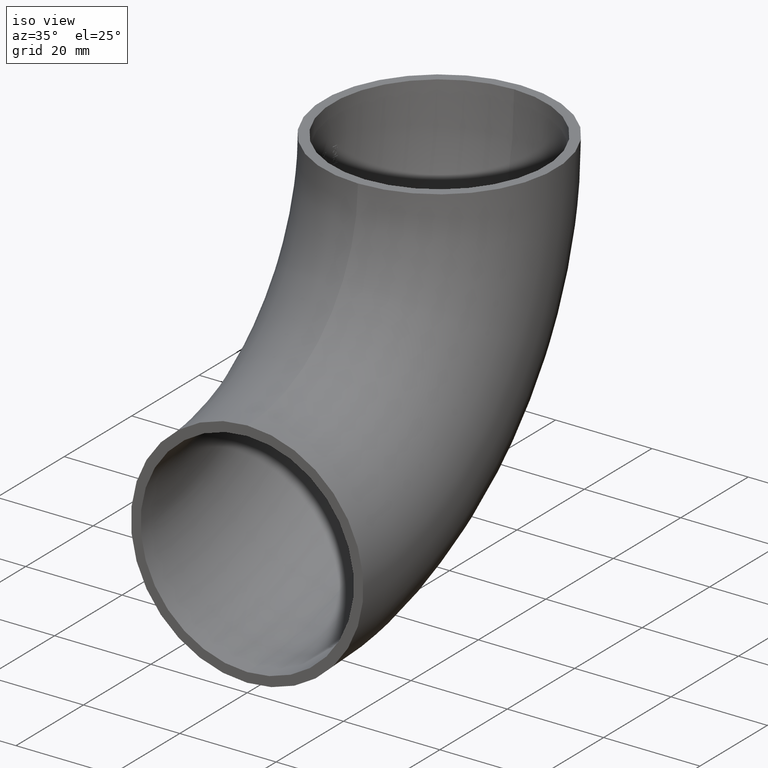
[diagram: clean part render]
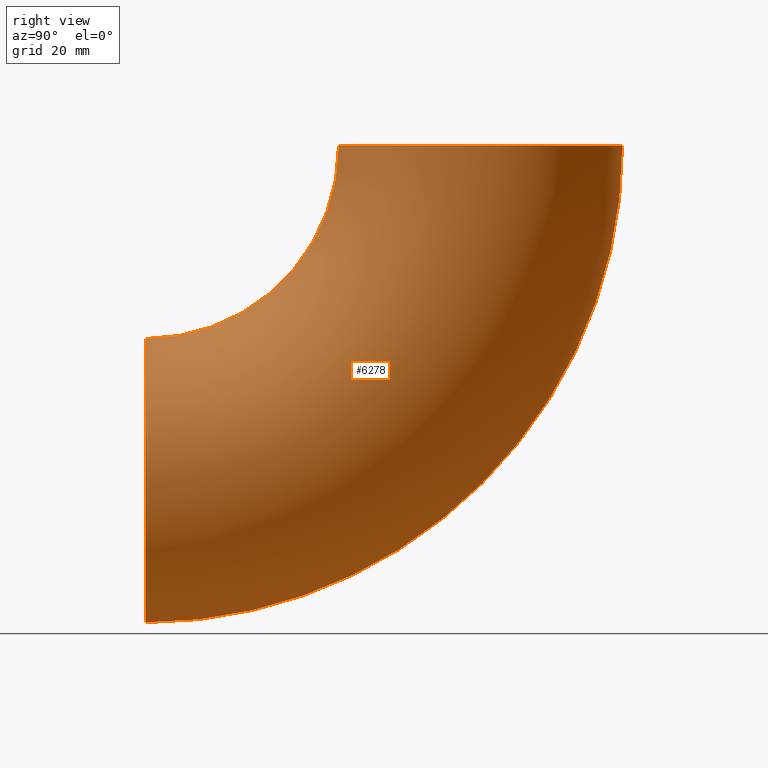
[diagram: tour spotlight — one face highlighted and labeled with its STEP entity id]
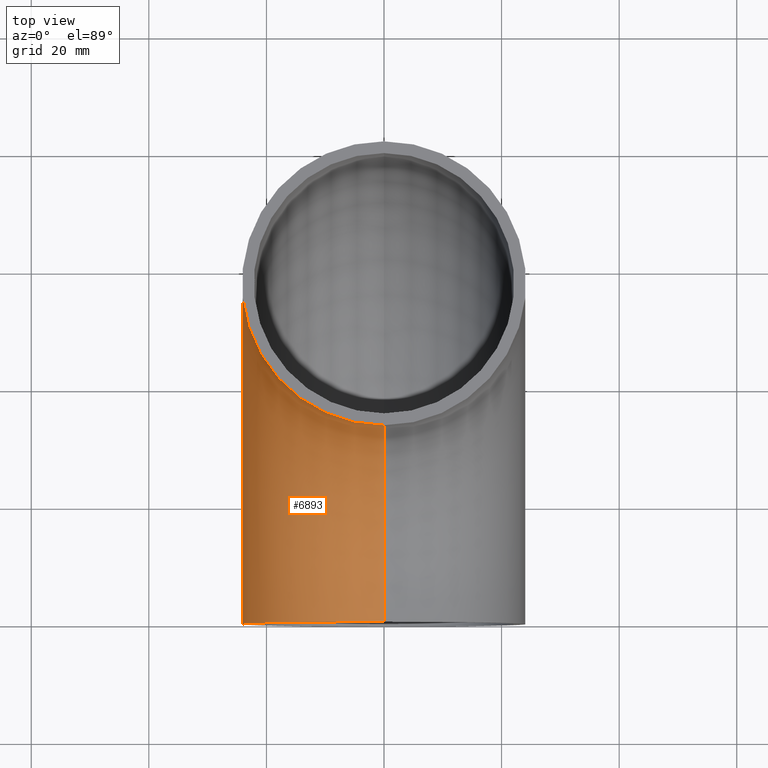
[diagram: tour spotlight — one face highlighted and labeled with its STEP entity id]
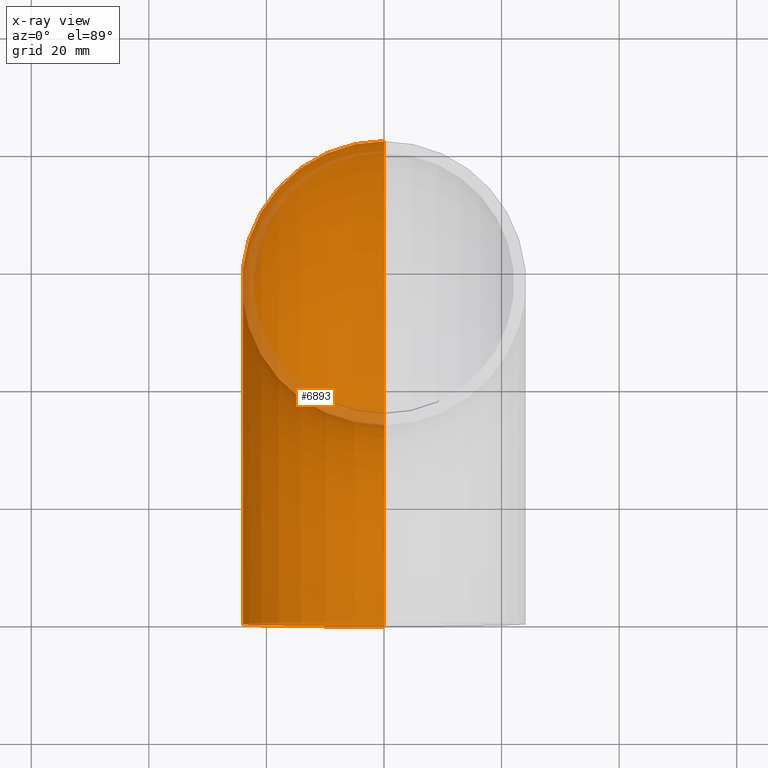
[diagram: x-ray of the same camera — body ghosted, this tour face saturated]
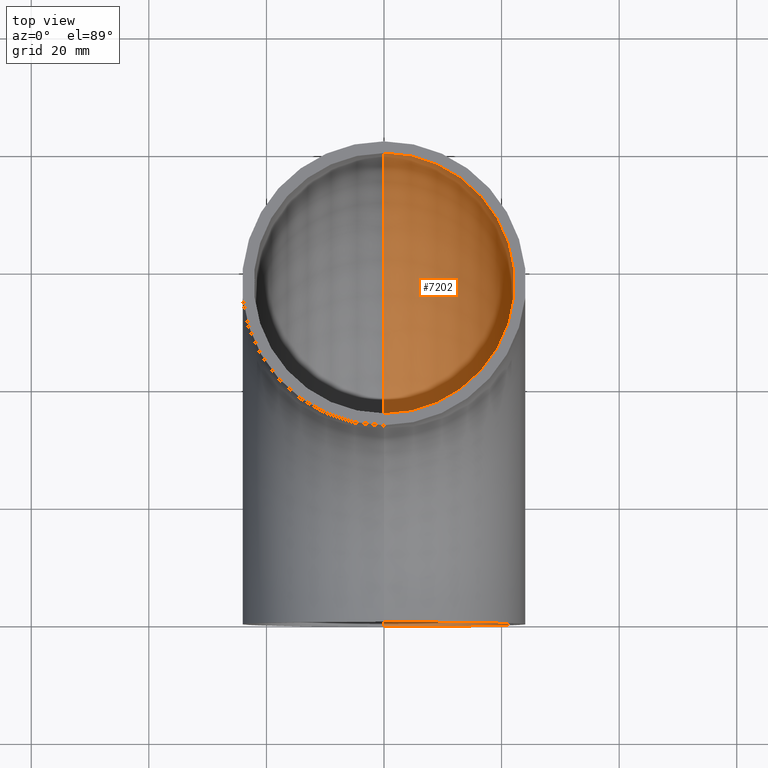
[diagram: tour spotlight — one face highlighted and labeled with its STEP entity id]
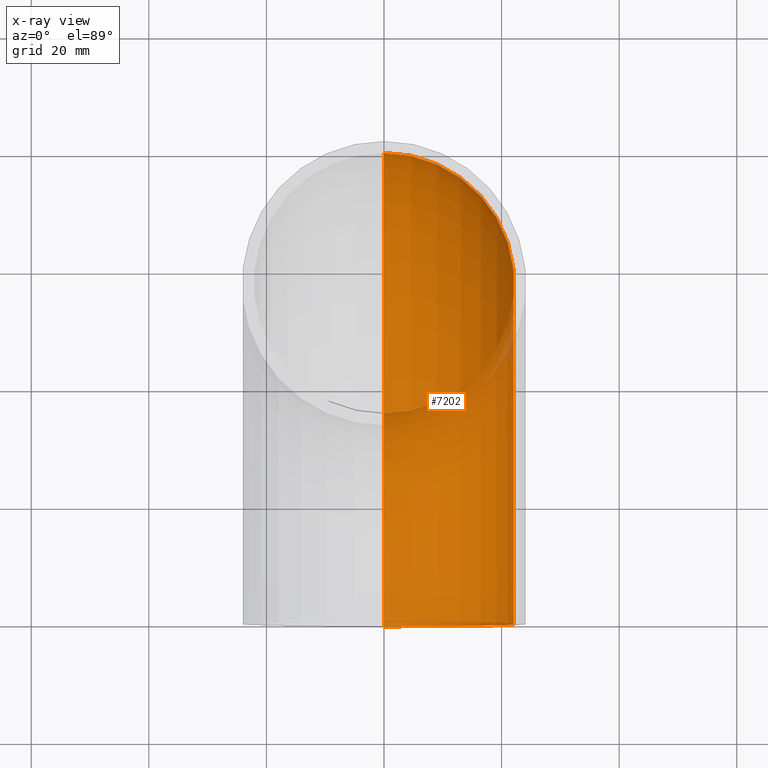
[diagram: x-ray of the same camera — body ghosted, this tour face saturated]
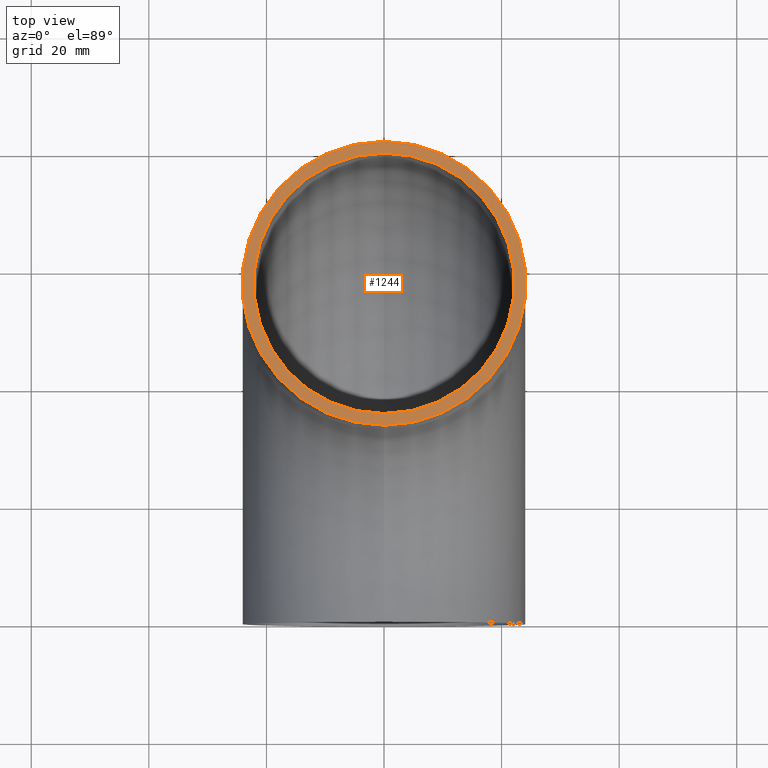
[diagram: tour spotlight — one face highlighted and labeled with its STEP entity id]
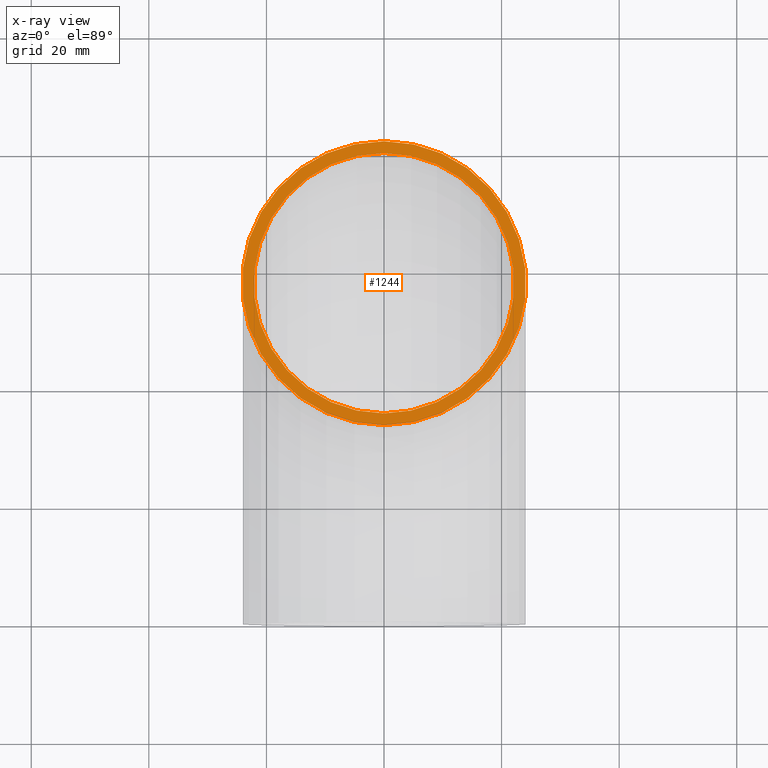
[diagram: x-ray of the same camera — body ghosted, this tour face saturated]
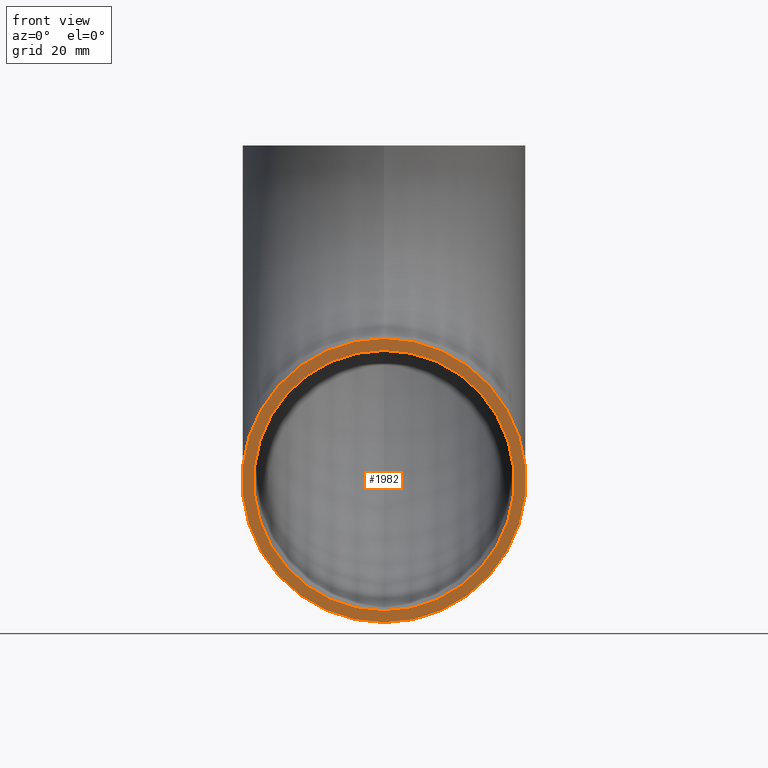
[diagram: tour spotlight — one face highlighted and labeled with its STEP entity id]
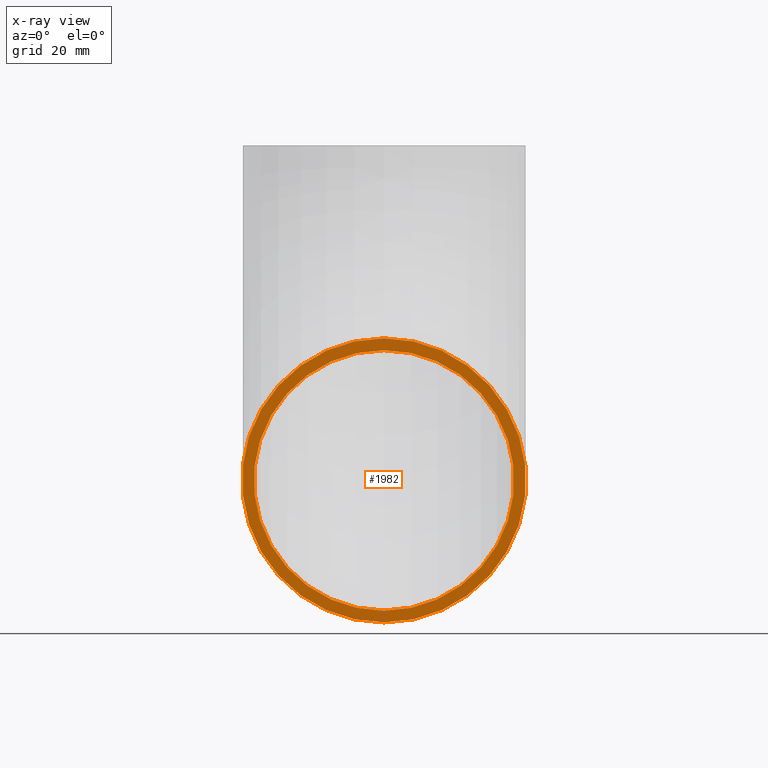
[diagram: x-ray of the same camera — body ghosted, this tour face saturated]
A machine part: a face-by-face anatomy tour. The part has 227 B-rep faces; the first image is the clean iso view, then the 5 largest visible faces are spotlighted one at a time (largest first), each with its STEP entity span.

Face 1 — right view, entity #6278. In plain terms, the highlighted toroidal blend (fillet) surface has major radius 57 mm and minor (blend) radius 24.15 mm.
Definition (entity closure, byte-faithful):
#220 = DIRECTION ( 'NONE',  ( 0.0000000000000000000, 0.0000000000000000000, 1.000000000000000000 ) ) ;
#323 = AXIS2_PLACEMENT_3D ( 'NONE', #2578, #3464, #6185 ) ;
#425 = CIRCLE ( 'NONE', #3983, 24.14999999999999900 ) ;
#527 = DIRECTION ( 'NONE',  ( -1.000000000000000000, -0.0000000000000000000, -0.0000000000000000000 ) ) ;
#1066 = DIRECTION ( 'NONE',  ( 0.0000000000000000000, 1.000000000000000000, 0.0000000000000000000 ) ) ;
#1524 = VERTEX_POINT ( 'NONE', #10981 ) ;
#1783 = DIRECTION ( 'NONE',  ( 0.0000000000000000000, -1.000000000000000000, 6.123233995736767300E-017 ) ) ;
#2466 = DIRECTION ( 'NONE',  ( 0.0000000000000000000, 0.0000000000000000000, 1.000000000000000000 ) ) ;
#2578 = CARTESIAN_POINT ( 'NONE',  ( 0.0000000000000000000, 0.0000000000000000000, 0.0000000000000000000 ) ) ;
#2625 = CIRCLE ( 'NONE', #11242, 32.85000000000000100 ) ;
#3050 = CARTESIAN_POINT ( 'NONE',  ( 0.0000000000000000000, 32.85000000000000100, -2.011482367599527500E-015 ) ) ;
#3082 = VERTEX_POINT ( 'NONE', #5708 ) ;
#3159 = CIRCLE ( 'NONE', #323, 81.15000000000000600 ) ;
#3168 = ORIENTED_EDGE ( 'NONE', *, *, #6587, .T. ) ;
#3193 = EDGE_CURVE ( 'NONE', #8144, #3082, #2625, .T. ) ;
#3194 = DIRECTION ( 'NONE',  ( 0.0000000000000000000, 6.123233995736766000E-017, 1.000000000000000000 ) ) ;
#3274 = CARTESIAN_POINT ( 'NONE',  ( 2.957522019940857900E-015, 0.0000000000000000000, 0.0000000000000000000 ) ) ;
#3464 = DIRECTION ( 'NONE',  ( -1.000000000000000000, -0.0000000000000000000, -0.0000000000000000000 ) ) ;
#3632 = EDGE_CURVE ( 'NONE', #8144, #6253, #8101, .T. ) ;
#3983 = AXIS2_PLACEMENT_3D ( 'NONE', #4573, #1066, #220 ) ;
#4389 = FACE_OUTER_BOUND ( 'NONE', #9222, .T. ) ;
#4573 = CARTESIAN_POINT ( 'NONE',  ( 0.0000000000000000000, 0.0000000000000000000, -57.00000000000000000 ) ) ;
#4876 = CARTESIAN_POINT ( 'NONE',  ( 0.0000000000000000000, 0.0000000000000000000, 0.0000000000000000000 ) ) ;
#5708 = CARTESIAN_POINT ( 'NONE',  ( 0.0000000000000000000, 0.0000000000000000000, -32.85000000000000100 ) ) ;
#5748 = ORIENTED_EDGE ( 'NONE', *, *, #5929, .F. ) ;
#5768 = CARTESIAN_POINT ( 'NONE',  ( 0.0000000000000000000, 81.15000000000000600, -4.969004387540385400E-015 ) ) ;
#5929 = EDGE_CURVE ( 'NONE', #6253, #1524, #3159, .T. ) ;
#6185 = DIRECTION ( 'NONE',  ( 0.0000000000000000000, 0.0000000000000000000, 1.000000000000000000 ) ) ;
#6253 = VERTEX_POINT ( 'NONE', #5768 ) ;
#6278 = ADVANCED_FACE ( 'NONE', ( #4389 ), #7946, .T. ) ;
#6587 = EDGE_CURVE ( 'NONE', #3082, #1524, #425, .T. ) ;
#6637 = DIRECTION ( 'NONE',  ( 0.0000000000000000000, 0.0000000000000000000, 1.000000000000000000 ) ) ;
#6785 = CARTESIAN_POINT ( 'NONE',  ( 0.0000000000000000000, 57.00000000000000000, -3.490243377569956500E-015 ) ) ;
#6816 = ORIENTED_EDGE ( 'NONE', *, *, #3193, .T. ) ;
#6913 = AXIS2_PLACEMENT_3D ( 'NONE', #4876, #527, #6637 ) ;
#7946 = TOROIDAL_SURFACE ( 'NONE', #6913, 57.00000000000000000, 24.14999999999999900 ) ;
#8044 = ORIENTED_EDGE ( 'NONE', *, *, #3632, .F. ) ;
#8101 = CIRCLE ( 'NONE', #8690, 24.14999999999999900 ) ;
#8144 = VERTEX_POINT ( 'NONE', #3050 ) ;
#8690 = AXIS2_PLACEMENT_3D ( 'NONE', #6785, #3194, #1783 ) ;
#9222 = EDGE_LOOP ( 'NONE', ( #5748, #8044, #6816, #3168 ) ) ;
#9424 = DIRECTION ( 'NONE',  ( -1.000000000000000000, -0.0000000000000000000, -0.0000000000000000000 ) ) ;
#10981 = CARTESIAN_POINT ( 'NONE',  ( 0.0000000000000000000, 0.0000000000000000000, -81.15000000000000600 ) ) ;
#11242 = AXIS2_PLACEMENT_3D ( 'NONE', #3274, #9424, #2466 ) ;

Face 2 — top view, entity #6893. An x-ray twin of the same camera follows (body ghosted, this face saturated) — the face is partly hidden behind the body. In plain terms, the highlighted toroidal blend (fillet) surface has major radius 57 mm and minor (blend) radius 24.15 mm.
Definition (entity closure, byte-faithful):
#323 = AXIS2_PLACEMENT_3D ( 'NONE', #2578, #3464, #6185 ) ;
#681 = ORIENTED_EDGE ( 'NONE', *, *, #3193, .F. ) ;
#1204 = ORIENTED_EDGE ( 'NONE', *, *, #10897, .F. ) ;
#1524 = VERTEX_POINT ( 'NONE', #10981 ) ;
#1653 = TOROIDAL_SURFACE ( 'NONE', #9504, 57.00000000000000000, 24.14999999999999900 ) ;
#2291 = DIRECTION ( 'NONE',  ( 0.0000000000000000000, 1.000000000000000000, 0.0000000000000000000 ) ) ;
#2466 = DIRECTION ( 'NONE',  ( 0.0000000000000000000, 0.0000000000000000000, 1.000000000000000000 ) ) ;
#2520 = DIRECTION ( 'NONE',  ( 0.0000000000000000000, -1.000000000000000000, 6.123233995736767300E-017 ) ) ;
#2578 = CARTESIAN_POINT ( 'NONE',  ( 0.0000000000000000000, 0.0000000000000000000, 0.0000000000000000000 ) ) ;
#2625 = CIRCLE ( 'NONE', #11242, 32.85000000000000100 ) ;
#2677 = DIRECTION ( 'NONE',  ( -1.000000000000000000, -0.0000000000000000000, -0.0000000000000000000 ) ) ;
#3050 = CARTESIAN_POINT ( 'NONE',  ( 0.0000000000000000000, 32.85000000000000100, -2.011482367599527500E-015 ) ) ;
#3082 = VERTEX_POINT ( 'NONE', #5708 ) ;
#3159 = CIRCLE ( 'NONE', #323, 81.15000000000000600 ) ;
#3177 = DIRECTION ( 'NONE',  ( 0.0000000000000000000, 0.0000000000000000000, 1.000000000000000000 ) ) ;
#3193 = EDGE_CURVE ( 'NONE', #8144, #3082, #2625, .T. ) ;
#3274 = CARTESIAN_POINT ( 'NONE',  ( 2.957522019940857900E-015, 0.0000000000000000000, 0.0000000000000000000 ) ) ;
#3464 = DIRECTION ( 'NONE',  ( -1.000000000000000000, -0.0000000000000000000, -0.0000000000000000000 ) ) ;
#4491 = EDGE_LOOP ( 'NONE', ( #1204, #9819, #8996, #681 ) ) ;
#4752 = CIRCLE ( 'NONE', #4875, 24.14999999999999900 ) ;
#4875 = AXIS2_PLACEMENT_3D ( 'NONE', #6927, #7846, #2520 ) ;
#4893 = CARTESIAN_POINT ( 'NONE',  ( 0.0000000000000000000, 0.0000000000000000000, -57.00000000000000000 ) ) ;
#5708 = CARTESIAN_POINT ( 'NONE',  ( 0.0000000000000000000, 0.0000000000000000000, -32.85000000000000100 ) ) ;
#5768 = CARTESIAN_POINT ( 'NONE',  ( 0.0000000000000000000, 81.15000000000000600, -4.969004387540385400E-015 ) ) ;
#5929 = EDGE_CURVE ( 'NONE', #6253, #1524, #3159, .T. ) ;
#6086 = DIRECTION ( 'NONE',  ( 0.0000000000000000000, 0.0000000000000000000, 1.000000000000000000 ) ) ;
#6185 = DIRECTION ( 'NONE',  ( 0.0000000000000000000, 0.0000000000000000000, 1.000000000000000000 ) ) ;
#6253 = VERTEX_POINT ( 'NONE', #5768 ) ;
#6569 = CIRCLE ( 'NONE', #9728, 24.14999999999999900 ) ;
#6893 = ADVANCED_FACE ( 'NONE', ( #8378 ), #1653, .T. ) ;
#6927 = CARTESIAN_POINT ( 'NONE',  ( 0.0000000000000000000, 57.00000000000000000, -3.490243377569956500E-015 ) ) ;
#6967 = CARTESIAN_POINT ( 'NONE',  ( 0.0000000000000000000, 0.0000000000000000000, 0.0000000000000000000 ) ) ;
#7846 = DIRECTION ( 'NONE',  ( 0.0000000000000000000, 6.123233995736766000E-017, 1.000000000000000000 ) ) ;
#8144 = VERTEX_POINT ( 'NONE', #3050 ) ;
#8378 = FACE_OUTER_BOUND ( 'NONE', #4491, .T. ) ;
#8486 = EDGE_CURVE ( 'NONE', #1524, #3082, #6569, .T. ) ;
#8996 = ORIENTED_EDGE ( 'NONE', *, *, #8486, .T. ) ;
#9424 = DIRECTION ( 'NONE',  ( -1.000000000000000000, -0.0000000000000000000, -0.0000000000000000000 ) ) ;
#9504 = AXIS2_PLACEMENT_3D ( 'NONE', #6967, #2677, #6086 ) ;
#9728 = AXIS2_PLACEMENT_3D ( 'NONE', #4893, #2291, #3177 ) ;
#9819 = ORIENTED_EDGE ( 'NONE', *, *, #5929, .T. ) ;
#10897 = EDGE_CURVE ( 'NONE', #6253, #8144, #4752, .T. ) ;
#10981 = CARTESIAN_POINT ( 'NONE',  ( 0.0000000000000000000, 0.0000000000000000000, -81.15000000000000600 ) ) ;
#11242 = AXIS2_PLACEMENT_3D ( 'NONE', #3274, #9424, #2466 ) ;

Face 3 — top view, entity #7202. An x-ray twin of the same camera follows (body ghosted, this face saturated) — the face is partly hidden behind the body. In plain terms, the highlighted toroidal blend (fillet) surface has major radius 57 mm and minor (blend) radius 22.15 mm.
Definition (entity closure, byte-faithful):
#86 = AXIS2_PLACEMENT_3D ( 'NONE', #1127, #4625, #199 ) ;
#194 = VERTEX_POINT ( 'NONE', #8289 ) ;
#199 = DIRECTION ( 'NONE',  ( 0.0000000000000000000, 0.0000000000000000000, 1.000000000000000000 ) ) ;
#253 = EDGE_CURVE ( 'NONE', #263, #3244, #10344, .T. ) ;
#263 = VERTEX_POINT ( 'NONE', #9332 ) ;
#587 = CARTESIAN_POINT ( 'NONE',  ( 0.0000000000000000000, 0.0000000000000000000, 0.0000000000000000000 ) ) ;
#803 = ORIENTED_EDGE ( 'NONE', *, *, #1879, .F. ) ;
#1099 = EDGE_CURVE ( 'NONE', #263, #194, #1567, .T. ) ;
#1122 = AXIS2_PLACEMENT_3D ( 'NONE', #5210, #3354, #4363 ) ;
#1127 = CARTESIAN_POINT ( 'NONE',  ( 0.0000000000000000000, 0.0000000000000000000, 0.0000000000000000000 ) ) ;
#1260 = ORIENTED_EDGE ( 'NONE', *, *, #1099, .F. ) ;
#1290 = CIRCLE ( 'NONE', #7923, 22.14999999999999500 ) ;
#1567 = CIRCLE ( 'NONE', #4176, 34.85000000000000900 ) ;
#1879 = EDGE_CURVE ( 'NONE', #194, #3122, #1290, .T. ) ;
#2106 = EDGE_CURVE ( 'NONE', #3244, #3122, #9374, .T. ) ;
#2814 = ORIENTED_EDGE ( 'NONE', *, *, #2106, .T. ) ;
#3122 = VERTEX_POINT ( 'NONE', #9275 ) ;
#3244 = VERTEX_POINT ( 'NONE', #6946 ) ;
#3354 = DIRECTION ( 'NONE',  ( 0.0000000000000000000, 6.123233995736766000E-017, 1.000000000000000000 ) ) ;
#4097 = DIRECTION ( 'NONE',  ( -1.000000000000000000, -0.0000000000000000000, -0.0000000000000000000 ) ) ;
#4100 = CARTESIAN_POINT ( 'NONE',  ( 0.0000000000000000000, 0.0000000000000000000, -57.00000000000000000 ) ) ;
#4176 = AXIS2_PLACEMENT_3D ( 'NONE', #5191, #6144, #6186 ) ;
#4243 = FACE_OUTER_BOUND ( 'NONE', #10778, .T. ) ;
#4363 = DIRECTION ( 'NONE',  ( 0.0000000000000000000, -1.000000000000000000, 6.123233995736764800E-017 ) ) ;
#4575 = AXIS2_PLACEMENT_3D ( 'NONE', #587, #4097, #5823 ) ;
#4625 = DIRECTION ( 'NONE',  ( -1.000000000000000000, -0.0000000000000000000, -0.0000000000000000000 ) ) ;
#5191 = CARTESIAN_POINT ( 'NONE',  ( 2.712592660111386800E-015, 0.0000000000000000000, 0.0000000000000000000 ) ) ;
#5210 = CARTESIAN_POINT ( 'NONE',  ( 0.0000000000000000000, 57.00000000000000000, -3.490243377569956500E-015 ) ) ;
#5760 = DIRECTION ( 'NONE',  ( 0.0000000000000000000, 1.000000000000000000, 0.0000000000000000000 ) ) ;
#5823 = DIRECTION ( 'NONE',  ( 0.0000000000000000000, 0.0000000000000000000, 1.000000000000000000 ) ) ;
#6144 = DIRECTION ( 'NONE',  ( -1.000000000000000000, -0.0000000000000000000, -0.0000000000000000000 ) ) ;
#6186 = DIRECTION ( 'NONE',  ( 0.0000000000000000000, 0.0000000000000000000, 1.000000000000000000 ) ) ;
#6946 = CARTESIAN_POINT ( 'NONE',  ( 0.0000000000000000000, 79.14999999999999100, -4.846539707625650300E-015 ) ) ;
#7202 = ADVANCED_FACE ( 'NONE', ( #4243 ), #10162, .F. ) ;
#7607 = DIRECTION ( 'NONE',  ( 0.0000000000000000000, 0.0000000000000000000, 1.000000000000000000 ) ) ;
#7923 = AXIS2_PLACEMENT_3D ( 'NONE', #4100, #5760, #7607 ) ;
#8289 = CARTESIAN_POINT ( 'NONE',  ( 0.0000000000000000000, 0.0000000000000000000, -34.85000000000000900 ) ) ;
#9275 = CARTESIAN_POINT ( 'NONE',  ( 0.0000000000000000000, 0.0000000000000000000, -79.14999999999999100 ) ) ;
#9332 = CARTESIAN_POINT ( 'NONE',  ( 0.0000000000000000000, 34.85000000000000900, -2.133947047514263400E-015 ) ) ;
#9374 = CIRCLE ( 'NONE', #86, 79.14999999999999100 ) ;
#10162 = TOROIDAL_SURFACE ( 'NONE', #4575, 57.00000000000000000, 22.14999999999999500 ) ;
#10344 = CIRCLE ( 'NONE', #1122, 22.14999999999999500 ) ;
#10778 = EDGE_LOOP ( 'NONE', ( #11061, #2814, #803, #1260 ) ) ;
#11061 = ORIENTED_EDGE ( 'NONE', *, *, #253, .T. ) ;

Face 4 — top view, entity #1244. An x-ray twin of the same camera follows (body ghosted, this face saturated) — the face is partly hidden behind the body. In plain terms, the highlighted planar face has unit normal (0, 0, 1).
Definition (entity closure, byte-faithful):
#253 = EDGE_CURVE ( 'NONE', #263, #3244, #10344, .T. ) ;
#263 = VERTEX_POINT ( 'NONE', #9332 ) ;
#472 = FACE_OUTER_BOUND ( 'NONE', #9839, .T. ) ;
#1072 = DIRECTION ( 'NONE',  ( 0.0000000000000000000, 6.123233995736766000E-017, 1.000000000000000000 ) ) ;
#1122 = AXIS2_PLACEMENT_3D ( 'NONE', #5210, #3354, #4363 ) ;
#1244 = ADVANCED_FACE ( 'NONE', ( #10894, #472 ), #4614, .T. ) ;
#1783 = DIRECTION ( 'NONE',  ( 0.0000000000000000000, -1.000000000000000000, 6.123233995736767300E-017 ) ) ;
#2075 = CARTESIAN_POINT ( 'NONE',  ( 0.0000000000000000000, 57.00000000000000000, -3.490243377569956500E-015 ) ) ;
#2520 = DIRECTION ( 'NONE',  ( 0.0000000000000000000, -1.000000000000000000, 6.123233995736767300E-017 ) ) ;
#3050 = CARTESIAN_POINT ( 'NONE',  ( 0.0000000000000000000, 32.85000000000000100, -2.011482367599527500E-015 ) ) ;
#3194 = DIRECTION ( 'NONE',  ( 0.0000000000000000000, 6.123233995736766000E-017, 1.000000000000000000 ) ) ;
#3244 = VERTEX_POINT ( 'NONE', #6946 ) ;
#3354 = DIRECTION ( 'NONE',  ( 0.0000000000000000000, 6.123233995736766000E-017, 1.000000000000000000 ) ) ;
#3632 = EDGE_CURVE ( 'NONE', #8144, #6253, #8101, .T. ) ;
#3658 = DIRECTION ( 'NONE',  ( 0.0000000000000000000, -1.000000000000000000, 6.123233995736766000E-017 ) ) ;
#4363 = DIRECTION ( 'NONE',  ( 0.0000000000000000000, -1.000000000000000000, 6.123233995736764800E-017 ) ) ;
#4567 = EDGE_CURVE ( 'NONE', #3244, #263, #9225, .T. ) ;
#4614 = PLANE ( 'NONE',  #8771 ) ;
#4752 = CIRCLE ( 'NONE', #4875, 24.14999999999999900 ) ;
#4875 = AXIS2_PLACEMENT_3D ( 'NONE', #6927, #7846, #2520 ) ;
#4920 = ORIENTED_EDGE ( 'NONE', *, *, #3632, .T. ) ;
#5210 = CARTESIAN_POINT ( 'NONE',  ( 0.0000000000000000000, 57.00000000000000000, -3.490243377569956500E-015 ) ) ;
#5394 = CARTESIAN_POINT ( 'NONE',  ( 0.0000000000000000000, 57.00000000000000000, -3.490243377569956500E-015 ) ) ;
#5768 = CARTESIAN_POINT ( 'NONE',  ( 0.0000000000000000000, 81.15000000000000600, -4.969004387540385400E-015 ) ) ;
#6253 = VERTEX_POINT ( 'NONE', #5768 ) ;
#6785 = CARTESIAN_POINT ( 'NONE',  ( 0.0000000000000000000, 57.00000000000000000, -3.490243377569956500E-015 ) ) ;
#6825 = AXIS2_PLACEMENT_3D ( 'NONE', #2075, #8287, #10871 ) ;
#6927 = CARTESIAN_POINT ( 'NONE',  ( 0.0000000000000000000, 57.00000000000000000, -3.490243377569956500E-015 ) ) ;
#6946 = CARTESIAN_POINT ( 'NONE',  ( 0.0000000000000000000, 79.14999999999999100, -4.846539707625650300E-015 ) ) ;
#7727 = ORIENTED_EDGE ( 'NONE', *, *, #253, .F. ) ;
#7846 = DIRECTION ( 'NONE',  ( 0.0000000000000000000, 6.123233995736766000E-017, 1.000000000000000000 ) ) ;
#8101 = CIRCLE ( 'NONE', #8690, 24.14999999999999900 ) ;
#8144 = VERTEX_POINT ( 'NONE', #3050 ) ;
#8287 = DIRECTION ( 'NONE',  ( 0.0000000000000000000, 6.123233995736766000E-017, 1.000000000000000000 ) ) ;
#8690 = AXIS2_PLACEMENT_3D ( 'NONE', #6785, #3194, #1783 ) ;
#8771 = AXIS2_PLACEMENT_3D ( 'NONE', #5394, #1072, #3658 ) ;
#9225 = CIRCLE ( 'NONE', #6825, 22.14999999999999500 ) ;
#9265 = ORIENTED_EDGE ( 'NONE', *, *, #10897, .T. ) ;
#9332 = CARTESIAN_POINT ( 'NONE',  ( 0.0000000000000000000, 34.85000000000000900, -2.133947047514263400E-015 ) ) ;
#9584 = ORIENTED_EDGE ( 'NONE', *, *, #4567, .F. ) ;
#9839 = EDGE_LOOP ( 'NONE', ( #4920, #9265 ) ) ;
#10159 = EDGE_LOOP ( 'NONE', ( #7727, #9584 ) ) ;
#10344 = CIRCLE ( 'NONE', #1122, 22.14999999999999500 ) ;
#10871 = DIRECTION ( 'NONE',  ( 0.0000000000000000000, -1.000000000000000000, 6.123233995736764800E-017 ) ) ;
#10894 = FACE_BOUND ( 'NONE', #10159, .T. ) ;
#10897 = EDGE_CURVE ( 'NONE', #6253, #8144, #4752, .T. ) ;

Face 5 — front view, entity #1982. An x-ray twin of the same camera follows (body ghosted, this face saturated) — the face is partly hidden behind the body. In plain terms, the highlighted planar face has unit normal (0, 1, 0).
Definition (entity closure, byte-faithful):
#194 = VERTEX_POINT ( 'NONE', #8289 ) ;
#220 = DIRECTION ( 'NONE',  ( 0.0000000000000000000, 0.0000000000000000000, 1.000000000000000000 ) ) ;
#425 = CIRCLE ( 'NONE', #3983, 24.14999999999999900 ) ;
#1066 = DIRECTION ( 'NONE',  ( 0.0000000000000000000, 1.000000000000000000, 0.0000000000000000000 ) ) ;
#1136 = EDGE_LOOP ( 'NONE', ( #2320, #6469 ) ) ;
#1290 = CIRCLE ( 'NONE', #7923, 22.14999999999999500 ) ;
#1524 = VERTEX_POINT ( 'NONE', #10981 ) ;
#1879 = EDGE_CURVE ( 'NONE', #194, #3122, #1290, .T. ) ;
#1982 = ADVANCED_FACE ( 'NONE', ( #2909, #10060 ), #4204, .F. ) ;
#2291 = DIRECTION ( 'NONE',  ( 0.0000000000000000000, 1.000000000000000000, 0.0000000000000000000 ) ) ;
#2320 = ORIENTED_EDGE ( 'NONE', *, *, #1879, .T. ) ;
#2415 = AXIS2_PLACEMENT_3D ( 'NONE', #8721, #11201, #6882 ) ;
#2735 = EDGE_CURVE ( 'NONE', #3122, #194, #4691, .T. ) ;
#2909 = FACE_BOUND ( 'NONE', #1136, .T. ) ;
#2926 = ORIENTED_EDGE ( 'NONE', *, *, #6587, .F. ) ;
#3082 = VERTEX_POINT ( 'NONE', #5708 ) ;
#3122 = VERTEX_POINT ( 'NONE', #9275 ) ;
#3177 = DIRECTION ( 'NONE',  ( 0.0000000000000000000, 0.0000000000000000000, 1.000000000000000000 ) ) ;
#3983 = AXIS2_PLACEMENT_3D ( 'NONE', #4573, #1066, #220 ) ;
#4100 = CARTESIAN_POINT ( 'NONE',  ( 0.0000000000000000000, 0.0000000000000000000, -57.00000000000000000 ) ) ;
#4204 = PLANE ( 'NONE',  #2415 ) ;
#4360 = DIRECTION ( 'NONE',  ( 0.0000000000000000000, 1.000000000000000000, 0.0000000000000000000 ) ) ;
#4573 = CARTESIAN_POINT ( 'NONE',  ( 0.0000000000000000000, 0.0000000000000000000, -57.00000000000000000 ) ) ;
#4691 = CIRCLE ( 'NONE', #11182, 22.14999999999999500 ) ;
#4893 = CARTESIAN_POINT ( 'NONE',  ( 0.0000000000000000000, 0.0000000000000000000, -57.00000000000000000 ) ) ;
#5647 = EDGE_LOOP ( 'NONE', ( #2926, #5824 ) ) ;
#5708 = CARTESIAN_POINT ( 'NONE',  ( 0.0000000000000000000, 0.0000000000000000000, -32.85000000000000100 ) ) ;
#5760 = DIRECTION ( 'NONE',  ( 0.0000000000000000000, 1.000000000000000000, 0.0000000000000000000 ) ) ;
#5824 = ORIENTED_EDGE ( 'NONE', *, *, #8486, .F. ) ;
#6469 = ORIENTED_EDGE ( 'NONE', *, *, #2735, .T. ) ;
#6569 = CIRCLE ( 'NONE', #9728, 24.14999999999999900 ) ;
#6587 = EDGE_CURVE ( 'NONE', #3082, #1524, #425, .T. ) ;
#6882 = DIRECTION ( 'NONE',  ( 0.0000000000000000000, -0.0000000000000000000, 1.000000000000000000 ) ) ;
#6996 = DIRECTION ( 'NONE',  ( 0.0000000000000000000, 0.0000000000000000000, 1.000000000000000000 ) ) ;
#7607 = DIRECTION ( 'NONE',  ( 0.0000000000000000000, 0.0000000000000000000, 1.000000000000000000 ) ) ;
#7923 = AXIS2_PLACEMENT_3D ( 'NONE', #4100, #5760, #7607 ) ;
#8289 = CARTESIAN_POINT ( 'NONE',  ( 0.0000000000000000000, 0.0000000000000000000, -34.85000000000000900 ) ) ;
#8486 = EDGE_CURVE ( 'NONE', #1524, #3082, #6569, .T. ) ;
#8637 = CARTESIAN_POINT ( 'NONE',  ( 0.0000000000000000000, 0.0000000000000000000, -57.00000000000000000 ) ) ;
#8721 = CARTESIAN_POINT ( 'NONE',  ( 0.0000000000000000000, 0.0000000000000000000, -57.00000000000000000 ) ) ;
#9275 = CARTESIAN_POINT ( 'NONE',  ( 0.0000000000000000000, 0.0000000000000000000, -79.14999999999999100 ) ) ;
#9728 = AXIS2_PLACEMENT_3D ( 'NONE', #4893, #2291, #3177 ) ;
#10060 = FACE_OUTER_BOUND ( 'NONE', #5647, .T. ) ;
#10981 = CARTESIAN_POINT ( 'NONE',  ( 0.0000000000000000000, 0.0000000000000000000, -81.15000000000000600 ) ) ;
#11182 = AXIS2_PLACEMENT_3D ( 'NONE', #8637, #4360, #6996 ) ;
#11201 = DIRECTION ( 'NONE',  ( 0.0000000000000000000, 1.000000000000000000, 0.0000000000000000000 ) ) ;